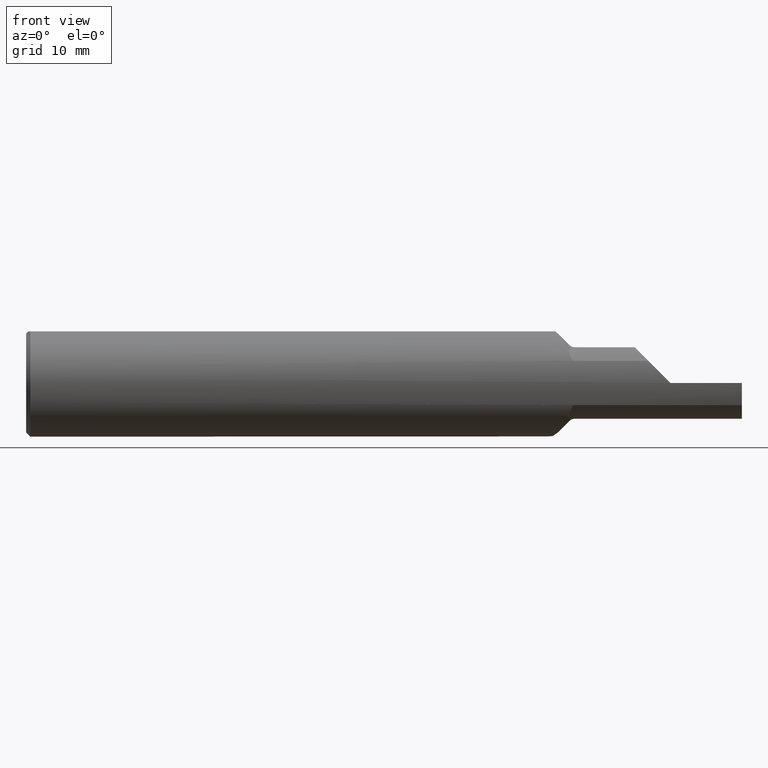
[diagram: clean part render]
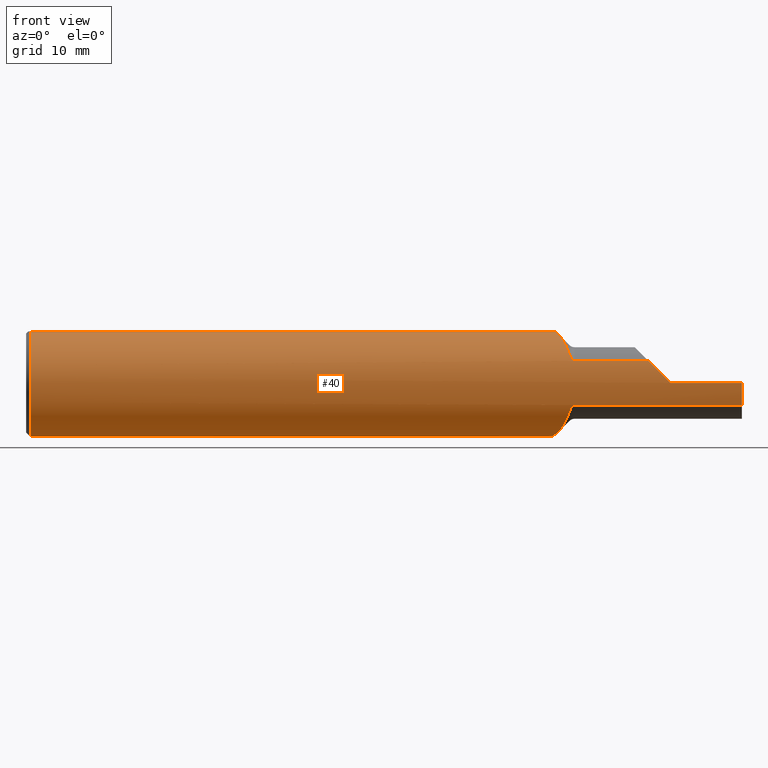
[diagram: same view with one face highlighted and labeled with its STEP entity id]
A machine part, front view. The second image highlights one B-rep face of the part: STEP entity #40.
In plain terms, the highlighted cylindrical surface (partial cylindrical patch) has radius 4.7587 mm, axis along (-1, -0, -0).
Its self-contained STEP definition (entity closure, byte-faithful):
#7 = EDGE_CURVE ( 'NONE', #105, #1034, #564, .T. ) ;
#12 = CARTESIAN_POINT ( 'NONE',  ( 1.777954695071388480, 0.1602583907463169255, 0.09790328053815619547 ) ) ;
#13 = CARTESIAN_POINT ( 'NONE',  ( 1.875102823204432001, -0.1130155210225757267, 0.1497212379034122409 ) ) ;
#30 = CARTESIAN_POINT ( 'NONE',  ( 1.857183623461200250, -0.07234999999999974785, 0.1728163765387992490 ) ) ;
#38 = CARTESIAN_POINT ( 'NONE',  ( 1.901158120796535789, -0.1633562859224052255, -0.09187193175627542119 ) ) ;
#40 = ADVANCED_FACE ( 'NONE', ( #180 ), #510, .T. ) ;
#42 = CARTESIAN_POINT ( 'NONE',  ( 1.771224228460478001, 0.1840318009960000556, 0.03744608662781920977 ) ) ;
#45 = DIRECTION ( 'NONE',  ( 0.000000000000000000, 0.000000000000000000, -1.000000000000000000 ) ) ;
#52 = CARTESIAN_POINT ( 'NONE',  ( 1.915355339059327644, -0.1707639599170700795, -0.07706940050007714260 ) ) ;
#56 = ORIENTED_EDGE ( 'NONE', *, *, #1011, .F. ) ;
#57 = CARTESIAN_POINT ( 'NONE',  ( 1.899285680703583612, -0.1606834653131303248, -0.09649123740443005248 ) ) ;
#63 = CARTESIAN_POINT ( 'NONE',  ( 2.250000000000000000, -0.1873499999999999610, -6.429183357567478880E-17 ) ) ;
#64 = ORIENTED_EDGE ( 'NONE', *, *, #302, .T. ) ;
#93 = CARTESIAN_POINT ( 'NONE',  ( 2.500000000000000000, -0.05073361804563106953, 0.1803500000000000381 ) ) ;
#96 = VERTEX_POINT ( 'NONE', #192 ) ;
#97 = CARTESIAN_POINT ( 'NONE',  ( 1.770337763137152187, 0.1872124516334592037, -0.01487472210176730286 ) ) ;
#105 = VERTEX_POINT ( 'NONE', #426 ) ;
#107 = CARTESIAN_POINT ( 'NONE',  ( 1.860785728155223806, -0.08095404535085916342, 0.1692142718447749994 ) ) ;
#108 = CARTESIAN_POINT ( 'NONE',  ( 2.500000000000000000, 0.000000000000000000, 0.000000000000000000 ) ) ;
#114 = DIRECTION ( 'NONE',  ( 0.000000000000000000, 0.000000000000000000, 1.000000000000000000 ) ) ;
#115 = ORIENTED_EDGE ( 'NONE', *, *, #486, .T. ) ;
#123 = CARTESIAN_POINT ( 'NONE',  ( 1.779995236286230131, 0.1531585939589148182, 0.1086796373768308538 ) ) ;
#127 = CARTESIAN_POINT ( 'NONE',  ( 1.772432072879413179, 0.1797268795620591830, -0.05330411249906009952 ) ) ;
#130 =( BOUNDED_CURVE ( )  B_SPLINE_CURVE ( 3, ( #382, #818, #885, #154 ),
 .UNSPECIFIED., .F., .F. ) 
 B_SPLINE_CURVE_WITH_KNOTS ( ( 4, 4 ),
 ( 4.715858429565467524, 5.136341099405665744 ),
 .UNSPECIFIED. ) 
 CURVE ( )  GEOMETRIC_REPRESENTATION_ITEM ( )  RATIONAL_B_SPLINE_CURVE ( ( 1.000000000000000000, 0.9853203850599061564, 0.9853203850599061564, 1.000000000000000000 ) ) 
 REPRESENTATION_ITEM ( '' )  );
#136 = DIRECTION ( 'NONE',  ( -1.000000000000000000, -0.000000000000000000, -0.000000000000000000 ) ) ;
#144 = CARTESIAN_POINT ( 'NONE',  ( 0.01499999999999942525, -0.05073361804563293609, 0.1803500000000000381 ) ) ;
#149 = EDGE_CURVE ( 'NONE', #814, #972, #626, .T. ) ;
#151 = CARTESIAN_POINT ( 'NONE',  ( 1.871587353908034101, -0.1054096907537717676, -0.1551669346804203653 ) ) ;
#154 = CARTESIAN_POINT ( 'NONE',  ( 2.173580599499921995, -0.1707639599170699407, 0.07706940050007732301 ) ) ;
#161 = ORIENTED_EDGE ( 'NONE', *, *, #942, .T. ) ;
#164 = VERTEX_POINT ( 'NONE', #451 ) ;
#172 = CARTESIAN_POINT ( 'NONE',  ( 1.776563200756604122, 0.1651118022961632903, -0.08947527289251178129 ) ) ;
#177 = CARTESIAN_POINT ( 'NONE',  ( 1.784238480591338272, 0.1386485486275685630, -0.1261636421672477359 ) ) ;
#180 = FACE_OUTER_BOUND ( 'NONE', #829, .T. ) ;
#183 = CARTESIAN_POINT ( 'NONE',  ( 1.812478857280754863, 0.04812493428509528881, -0.1814925034083489097 ) ) ;
#184 = CARTESIAN_POINT ( 'NONE',  ( 1.871519615916160229, -0.1052610557576409561, 0.1552667971135522629 ) ) ;
#190 = EDGE_CURVE ( 'NONE', #457, #223, #663, .T. ) ;
#192 = CARTESIAN_POINT ( 'NONE',  ( 2.250000000000000000, -0.1873488724278853934, 0.0006500000000000633960 ) ) ;
#194 = CARTESIAN_POINT ( 'NONE',  ( 0.01500000000000079568, 0.000000000000000000, 0.000000000000000000 ) ) ;
#204 = CARTESIAN_POINT ( 'NONE',  ( 1.847805746031308427, -0.04949128757996133082, -0.1811094437879526287 ) ) ;
#213 = CARTESIAN_POINT ( 'NONE',  ( 1.897677669529663991, -0.1577425422176862713, 0.1010807245457879533 ) ) ;
#217 = AXIS2_PLACEMENT_3D ( 'NONE', #108, #347, #114 ) ;
#221 = CARTESIAN_POINT ( 'NONE',  ( 1.885357923537703373, -0.1342337378524104674, -0.1310429395623435855 ) ) ;
#223 = VERTEX_POINT ( 'NONE', #608 ) ;
#225 = EDGE_CURVE ( 'NONE', #814, #515, #721, .T. ) ;
#226 = CARTESIAN_POINT ( 'NONE',  ( 0.01500000000000079568, 0.000000000000000000, 0.000000000000000000 ) ) ;
#230 = LINE ( 'NONE', #234, #667 ) ;
#234 = CARTESIAN_POINT ( 'NONE',  ( 2.500000000000000000, -0.1873499999999999888, -6.429183357567480113E-17 ) ) ;
#246 = CARTESIAN_POINT ( 'NONE',  ( 1.793480051322620783, 0.1077969305866319782, 0.1537576155098321073 ) ) ;
#250 = VERTEX_POINT ( 'NONE', #372 ) ;
#252 = CARTESIAN_POINT ( 'NONE',  ( 1.801107762570094861, 0.08323016174429369307, -0.1683102574403323726 ) ) ;
#257 = ORIENTED_EDGE ( 'NONE', *, *, #754, .T. ) ;
#261 = LINE ( 'NONE', #350, #956 ) ;
#280 = CARTESIAN_POINT ( 'NONE',  ( 1.774547880979551184, 0.1722069005976021305, 0.07491720450804137399 ) ) ;
#282 = CARTESIAN_POINT ( 'NONE',  ( 1.912529687311022020, -0.1705378972963421114, -0.07757250268437203278 ) ) ;
#283 = CARTESIAN_POINT ( 'NONE',  ( 1.909127509227307895, -0.1694309564744252428, 0.07996482047444376795 ) ) ;
#284 = CARTESIAN_POINT ( 'NONE',  ( 1.857183623461200250, -0.07234999999999970621, -0.1728163765387992212 ) ) ;
#293 = CARTESIAN_POINT ( 'NONE',  ( 1.906393178060183047, -0.1680115360107063693, 0.08292733185577289001 ) ) ;
#300 = CARTESIAN_POINT ( 'NONE',  ( 2.173580599499921995, -0.1707639599170699407, 0.07706940050007732301 ) ) ;
#301 = EDGE_CURVE ( 'NONE', #223, #164, #965, .T. ) ;
#302 = EDGE_CURVE ( 'NONE', #1034, #983, #516, .T. ) ;
#304 = CARTESIAN_POINT ( 'NONE',  ( 1.915355339059327644, -0.1707639599170700795, 0.07706940050007714260 ) ) ;
#320 = CARTESIAN_POINT ( 'NONE',  ( 1.897677669529663991, -0.1577425422176863545, -0.1010807245457878562 ) ) ;
#323 = ORIENTED_EDGE ( 'NONE', *, *, #225, .T. ) ;
#325 = B_SPLINE_CURVE_WITH_KNOTS ( 'NONE', 3,
 ( #1042, #892, #391, #982 ),
 .UNSPECIFIED., .F., .F.,
 ( 4, 4 ),
 ( 7.799852739749770526E-07, 0.0006200624351649179893 ),
 .UNSPECIFIED. ) ;
#329 = CARTESIAN_POINT ( 'NONE',  ( 1.808512342576672705, 0.06018334788945476493, -0.1778582784703288122 ) ) ;
#330 = CARTESIAN_POINT ( 'NONE',  ( 2.500000000000000000, -0.1873499999999998222, -6.429183357567480113E-17 ) ) ;
#335 = AXIS2_PLACEMENT_3D ( 'NONE', #226, #728, #881 ) ;
#336 = EDGE_CURVE ( 'NONE', #105, #467, #325, .T. ) ;
#342 = CARTESIAN_POINT ( 'NONE',  ( 1.796798760652082771, 0.09699900128417589251, 0.1607818136651500696 ) ) ;
#346 = CARTESIAN_POINT ( 'NONE',  ( 1.897677669529663991, -0.1577425422176862713, 0.1010807245457879533 ) ) ;
#347 = DIRECTION ( 'NONE',  ( -1.000000000000000000, -0.000000000000000000, -0.000000000000000000 ) ) ;
#350 = CARTESIAN_POINT ( 'NONE',  ( 2.500000000000000000, 0.05073361804563106953, 0.1803500000000000381 ) ) ;
#357 = CARTESIAN_POINT ( 'NONE',  ( 1.906405057452078999, -0.1680204051680166677, -0.08290941801067872041 ) ) ;
#359 = CARTESIAN_POINT ( 'NONE',  ( 1.894854473388828175, -0.1525791435621195735, -0.1091385182950158350 ) ) ;
#369 = DIRECTION ( 'NONE',  ( 1.000000000000000000, 0.000000000000000000, 0.000000000000000000 ) ) ;
#372 = CARTESIAN_POINT ( 'NONE',  ( 1.857183623461200250, -0.07234999999999970621, -0.1728163765387992212 ) ) ;
#382 = CARTESIAN_POINT ( 'NONE',  ( 2.250000000000000000, -0.1873488724278853934, 0.0006500000000000633960 ) ) ;
#391 = CARTESIAN_POINT ( 'NONE',  ( 1.854251527663556942, -0.06534634870195803191, 0.1757484723364423351 ) ) ;
#407 = CARTESIAN_POINT ( 'NONE',  ( 1.857183623461200250, -0.07234999999999974785, 0.1728163765387992490 ) ) ;
#426 = CARTESIAN_POINT ( 'NONE',  ( 1.848359171801058576, -0.05073361804563107647, 0.1803500000000000381 ) ) ;
#429 = CARTESIAN_POINT ( 'NONE',  ( 1.904964460073831356, -0.1669035892968261936, -0.08514482223591543497 ) ) ;
#431 = CARTESIAN_POINT ( 'NONE',  ( 1.780656052074582885, 0.1509087159451679150, -0.1112131773084087949 ) ) ;
#437 = CARTESIAN_POINT ( 'NONE',  ( 1.779558854539173396, 0.1547009345895635213, -0.1058752598168465897 ) ) ;
#438 = EDGE_CURVE ( 'NONE', #467, #515, #773, .T. ) ;
#445 = CARTESIAN_POINT ( 'NONE',  ( 1.915355339059327644, -0.1707639599170700795, 0.07706940050007714260 ) ) ;
#451 = CARTESIAN_POINT ( 'NONE',  ( 1.915355339059327644, -0.1707639599170700795, -0.07706940050007714260 ) ) ;
#452 = CARTESIAN_POINT ( 'NONE',  ( 1.891809946652520669, -0.1468449295534861310, -0.1167369480987120733 ) ) ;
#457 = VERTEX_POINT ( 'NONE', #330 ) ;
#467 = VERTEX_POINT ( 'NONE', #407 ) ;
#473 = DIRECTION ( 'NONE',  ( -1.000000000000000000, -0.000000000000000000, -0.000000000000000000 ) ) ;
#481 = B_SPLINE_CURVE_WITH_KNOTS ( 'NONE', 3,
 ( #1014, #57, #38, #429, #357, #867, #783, #282, #766, #52 ),
 .UNSPECIFIED., .F., .F.,
 ( 4, 2, 2, 2, 4 ),
 ( 4.336808689942017736E-19, 0.0004304743692919203116, 0.0006457115539378756970, 0.0007533301462608603827, 0.0008609487385838451769 ),
 .UNSPECIFIED. ) ;
#486 = EDGE_CURVE ( 'NONE', #983, #884, #844, .T. ) ;
#492 = CARTESIAN_POINT ( 'NONE',  ( 1.852477893930588593, -0.06110981857011840712, -0.1775221060694107122 ) ) ;
#497 = CARTESIAN_POINT ( 'NONE',  ( 1.770621239219315690, 0.1861972792961229528, 0.02458794189566211943 ) ) ;
#503 = CARTESIAN_POINT ( 'NONE',  ( 1.820779348551172294, 0.02364555254899058240, -0.1862697665699595551 ) ) ;
#504 = CARTESIAN_POINT ( 'NONE',  ( 1.891941235793674903, -0.1472510663291620447, 0.1174533028559257286 ) ) ;
#506 = AXIS2_PLACEMENT_3D ( 'NONE', #194, #593, #825 ) ;
#510 = CYLINDRICAL_SURFACE ( 'NONE', #217, 0.1873499999999999888 ) ;
#515 = VERTEX_POINT ( 'NONE', #739 ) ;
#516 = CIRCLE ( 'NONE', #335, 0.1873499999999999888 ) ;
#519 = CARTESIAN_POINT ( 'NONE',  ( 1.904950128550692456, -0.1668915319110460538, 0.08516824821476272345 ) ) ;
#521 = CARTESIAN_POINT ( 'NONE',  ( 1.771146235663013435, 0.1843168879482640354, -0.03420148451633128056 ) ) ;
#528 = CARTESIAN_POINT ( 'NONE',  ( 2.153999999999999915, -0.1707639599170700795, 0.07706940050007714260 ) ) ;
#529 = DIRECTION ( 'NONE',  ( 0.000000000000000000, 0.000000000000000000, 1.000000000000000000 ) ) ;
#536 = EDGE_CURVE ( 'NONE', #884, #898, #261, .T. ) ;
#549 = ORIENTED_EDGE ( 'NONE', *, *, #7, .T. ) ;
#556 = EDGE_CURVE ( 'NONE', #801, #164, #481, .T. ) ;
#564 = LINE ( 'NONE', #93, #870 ) ;
#567 = B_SPLINE_CURVE_WITH_KNOTS ( 'NONE', 3,
 ( #963, #359, #452, #221, #791, #627, #151, #1038, #1032, #284 ),
 .UNSPECIFIED., .F., .F.,
 ( 4, 2, 2, 2, 4 ),
 ( 0.0007161442845211431294, 0.001476352927346877243, 0.002236561570172611139, 0.002996770212998345687, 0.003756978855824079366 ),
 .UNSPECIFIED. ) ;
#573 = ORIENTED_EDGE ( 'NONE', *, *, #908, .F. ) ;
#575 = CARTESIAN_POINT ( 'NONE',  ( 1.811652342510382541, 0.05073361804563572552, 0.1803500000000000381 ) ) ;
#588 = CARTESIAN_POINT ( 'NONE',  ( 1.825054110130809093, 0.01139412105151815964, -0.1874041826882221762 ) ) ;
#592 = CARTESIAN_POINT ( 'NONE',  ( 1.772992082306585893, 0.1777339935978582974, -0.05960787101436530039 ) ) ;
#593 = DIRECTION ( 'NONE',  ( 1.000000000000000000, -0.000000000000000000, -0.000000000000000000 ) ) ;
#608 = CARTESIAN_POINT ( 'NONE',  ( 2.500000000000000000, -0.1707639599170699962, -0.07706940050007722587 ) ) ;
#609 = CARTESIAN_POINT ( 'NONE',  ( 1.784807027521196243, 0.1366915025519611637, 0.1287798571746311960 ) ) ;
#610 = VECTOR ( 'NONE', #369, 39.37007874015748143 ) ;
#612 = CARTESIAN_POINT ( 'NONE',  ( 1.899285629790762764, -0.1606833721979553653, 0.09649138271627615004 ) ) ;
#616 = CARTESIAN_POINT ( 'NONE',  ( 2.500000000000000000, 0.000000000000000000, 0.000000000000000000 ) ) ;
#626 = LINE ( 'NONE', #528, #610 ) ;
#627 = CARTESIAN_POINT ( 'NONE',  ( 1.875101511466827686, -0.1130118820033058080, -0.1497209324072606984 ) ) ;
#649 = CARTESIAN_POINT ( 'NONE',  ( 2.153999999999999915, -0.1707639599170700795, -0.07706940050007714260 ) ) ;
#660 = CARTESIAN_POINT ( 'NONE',  ( 1.807636035106981343, 0.06285457607314892670, 0.1769402963409190677 ) ) ;
#663 = CIRCLE ( 'NONE', #799, 0.1873499999999999888 ) ;
#664 = ORIENTED_EDGE ( 'NONE', *, *, #536, .T. ) ;
#665 = CARTESIAN_POINT ( 'NONE',  ( 1.774926753194635998, 0.1708787332540029902, -0.07791196371509558072 ) ) ;
#667 = VECTOR ( 'NONE', #733, 39.37007874015748143 ) ;
#672 = B_SPLINE_CURVE_WITH_KNOTS ( 'NONE', 3,
 ( #744, #492, #204, #751, #933, #588, #503, #183, #329, #252, #919, #823, #686, #177, #994, #431, #437, #172, #665, #592, #127, #842, #521, #97, #775, #497, #42, #738, #280, #12, #123, #609, #981, #246, #342, #831, #660, #858 ),
 .UNSPECIFIED., .F., .F.,
 ( 4, 2, 2, 2, 2, 2, 2, 2, 2, 2, 2, 2, 2, 2, 2, 2, 2, 2, 4 ),
 ( 0.003756978855824079366, 0.004750606070745804280, 0.005744233285667529193, 0.006737860500589254974, 0.007731487715510979887, 0.008725114930432705668, 0.009718742145354430581, 0.01021555575281529044, 0.01071236936027615202, 0.01170599657519787347, 0.01220281018265873679, 0.01269962379011959665, 0.01369325100504131809, 0.01468687821996304127, 0.01568050543488476445, 0.01667413264980648069, 0.01766775986472820387, 0.01866138707964992705, 0.01965501429457164675 ),
 .UNSPECIFIED. ) ;
#686 = CARTESIAN_POINT ( 'NONE',  ( 1.788189419821468062, 0.1252997508203159416, -0.1398665203331845297 ) ) ;
#695 = CARTESIAN_POINT ( 'NONE',  ( 2.250000000000000000, 0.000000000000000000, 0.000000000000000000 ) ) ;
#704 = CARTESIAN_POINT ( 'NONE',  ( 1.912523631617916831, -0.1705361967948134383, 0.07757619954458885858 ) ) ;
#721 = B_SPLINE_CURVE_WITH_KNOTS ( 'NONE', 3,
 ( #445, #784, #704, #1015, #283, #293, #519, #789, #612, #213 ),
 .UNSPECIFIED., .F., .F.,
 ( 4, 2, 2, 2, 4 ),
 ( 0.000000000000000000, 0.0001085685215048198186, 0.0002171370430096396372, 0.0004342740860192935318, 0.0008685481720386001823 ),
 .UNSPECIFIED. ) ;
#728 = DIRECTION ( 'NONE',  ( 1.000000000000000000, -0.000000000000000000, -0.000000000000000000 ) ) ;
#733 = DIRECTION ( 'NONE',  ( -1.000000000000000000, -0.000000000000000000, -0.000000000000000000 ) ) ;
#738 = CARTESIAN_POINT ( 'NONE',  ( 1.773177002644260813, 0.1770736257016730097, 0.06256871632400115568 ) ) ;
#739 = CARTESIAN_POINT ( 'NONE',  ( 1.897677669529663991, -0.1577425422176862713, 0.1010807245457879533 ) ) ;
#744 = CARTESIAN_POINT ( 'NONE',  ( 1.857183623461200250, -0.07234999999999970621, -0.1728163765387992212 ) ) ;
#751 = CARTESIAN_POINT ( 'NONE',  ( 1.838512632015396830, -0.02549221419735799368, -0.1860111964125279460 ) ) ;
#754 = EDGE_CURVE ( 'NONE', #457, #1043, #230, .T. ) ;
#759 = ORIENTED_EDGE ( 'NONE', *, *, #190, .F. ) ;
#761 = EDGE_CURVE ( 'NONE', #96, #972, #130, .T. ) ;
#766 = CARTESIAN_POINT ( 'NONE',  ( 1.913908902861729322, -0.1707639599170534539, -0.07706940050015212429 ) ) ;
#773 = B_SPLINE_CURVE_WITH_KNOTS ( 'NONE', 3,
 ( #30, #107, #832, #184, #13, #927, #504, #346 ),
 .UNSPECIFIED., .F., .F.,
 ( 4, 2, 2, 4 ),
 ( 0.0006200624351649179893, 0.001380856206457162314, 0.002141649977749406856, 0.003663237520333904179 ),
 .UNSPECIFIED. ) ;
#775 = CARTESIAN_POINT ( 'NONE',  ( 1.770172998329585301, 0.1878056362616669361, -0.001742610769309169009 ) ) ;
#783 = CARTESIAN_POINT ( 'NONE',  ( 1.910148460470593834, -0.1698665315290002753, -0.07903182304161913974 ) ) ;
#784 = CARTESIAN_POINT ( 'NONE',  ( 1.913899932622417976, -0.1707639599170700795, 0.07706940050007711485 ) ) ;
#789 = CARTESIAN_POINT ( 'NONE',  ( 1.901157602756840204, -0.1633531904446171856, 0.09187667485228832864 ) ) ;
#791 = CARTESIAN_POINT ( 'NONE',  ( 1.881976415317672124, -0.1274041427334712540, -0.1376816163806117155 ) ) ;
#799 = AXIS2_PLACEMENT_3D ( 'NONE', #616, #945, #45 ) ;
#800 = DIRECTION ( 'NONE',  ( -1.000000000000000000, -0.000000000000000000, -0.000000000000000000 ) ) ;
#801 = VERTEX_POINT ( 'NONE', #320 ) ;
#814 = VERTEX_POINT ( 'NONE', #304 ) ;
#818 = CARTESIAN_POINT ( 'NONE',  ( 2.223545696637380331, -0.1872570901984921543, 0.02710430336261951054 ) ) ;
#822 = ORIENTED_EDGE ( 'NONE', *, *, #301, .F. ) ;
#823 = CARTESIAN_POINT ( 'NONE',  ( 1.791116425318793448, 0.1155509289413751833, -0.1480264012985756661 ) ) ;
#825 = DIRECTION ( 'NONE',  ( 0.000000000000000000, 0.000000000000000000, -1.000000000000000000 ) ) ;
#827 = CIRCLE ( 'NONE', #859, 0.1873499999999999888 ) ;
#829 = EDGE_LOOP ( 'NONE', ( #822, #759, #257, #161, #947, #905, #323, #846, #874, #549, #64, #115, #664, #573, #56, #882 ) ) ;
#831 = CARTESIAN_POINT ( 'NONE',  ( 1.803874789929541755, 0.07453730533396583924, 0.1723478690588709505 ) ) ;
#832 = CARTESIAN_POINT ( 'NONE',  ( 1.864374853501117979, -0.08925789740646671022, 0.1649869567441343277 ) ) ;
#842 = CARTESIAN_POINT ( 'NONE',  ( 1.771509882952550630, 0.1830157774888624689, -0.04059932064178667366 ) ) ;
#844 = CIRCLE ( 'NONE', #506, 0.1873499999999999888 ) ;
#846 = ORIENTED_EDGE ( 'NONE', *, *, #438, .F. ) ;
#858 = CARTESIAN_POINT ( 'NONE',  ( 1.811652342510382541, 0.05073361804563572552, 0.1803500000000000381 ) ) ;
#859 = AXIS2_PLACEMENT_3D ( 'NONE', #695, #136, #529 ) ;
#867 = CARTESIAN_POINT ( 'NONE',  ( 1.909149281104587148, -0.1694408866950492809, -0.07994379167839711642 ) ) ;
#870 = VECTOR ( 'NONE', #473, 39.37007874015748143 ) ;
#874 = ORIENTED_EDGE ( 'NONE', *, *, #336, .F. ) ;
#881 = DIRECTION ( 'NONE',  ( 0.000000000000000000, 0.000000000000000000, -1.000000000000000000 ) ) ;
#882 = ORIENTED_EDGE ( 'NONE', *, *, #556, .T. ) ;
#884 = VERTEX_POINT ( 'NONE', #906 ) ;
#885 = CARTESIAN_POINT ( 'NONE',  ( 2.197693056332493899, -0.1816464236030419233, 0.05295694366750571674 ) ) ;
#892 = CARTESIAN_POINT ( 'NONE',  ( 1.851310630883624908, -0.05814350708713280497, 0.1782655504275461600 ) ) ;
#898 = VERTEX_POINT ( 'NONE', #575 ) ;
#905 = ORIENTED_EDGE ( 'NONE', *, *, #149, .F. ) ;
#906 = CARTESIAN_POINT ( 'NONE',  ( 0.01500000000000079568, 0.05073361804563106953, 0.1803500000000000381 ) ) ;
#908 = EDGE_CURVE ( 'NONE', #250, #898, #672, .T. ) ;
#915 = DIRECTION ( 'NONE',  ( 1.000000000000000000, 0.000000000000000000, 0.000000000000000000 ) ) ;
#919 = CARTESIAN_POINT ( 'NONE',  ( 1.797627288442569915, 0.09434647022735524746, -0.1623655635172079614 ) ) ;
#927 = CARTESIAN_POINT ( 'NONE',  ( 1.885467495936204552, -0.1347107488173139023, 0.1315628174615313117 ) ) ;
#933 = CARTESIAN_POINT ( 'NONE',  ( 1.833895706846281337, -0.01311122781479166950, -0.1872918828694021265 ) ) ;
#942 = EDGE_CURVE ( 'NONE', #1043, #96, #827, .T. ) ;
#945 = DIRECTION ( 'NONE',  ( 1.000000000000000000, 0.000000000000000000, 0.000000000000000000 ) ) ;
#947 = ORIENTED_EDGE ( 'NONE', *, *, #761, .T. ) ;
#956 = VECTOR ( 'NONE', #915, 39.37007874015748143 ) ;
#963 = CARTESIAN_POINT ( 'NONE',  ( 1.897677669529663991, -0.1577425422176863545, -0.1010807245457878562 ) ) ;
#965 = LINE ( 'NONE', #649, #990 ) ;
#972 = VERTEX_POINT ( 'NONE', #300 ) ;
#981 = CARTESIAN_POINT ( 'NONE',  ( 1.787505014431014727, 0.1275766949525765082, 0.1377888583164319225 ) ) ;
#982 = CARTESIAN_POINT ( 'NONE',  ( 1.857183623461200250, -0.07234999999999974785, 0.1728163765387992490 ) ) ;
#983 = VERTEX_POINT ( 'NONE', #1023 ) ;
#990 = VECTOR ( 'NONE', #800, 39.37007874015748143 ) ;
#994 = CARTESIAN_POINT ( 'NONE',  ( 1.782995427860555537, 0.1428842120803212323, -0.1213503740968141231 ) ) ;
#1011 = EDGE_CURVE ( 'NONE', #801, #250, #567, .T. ) ;
#1014 = CARTESIAN_POINT ( 'NONE',  ( 1.897677669529663991, -0.1577425422176863545, -0.1010807245457878562 ) ) ;
#1015 = CARTESIAN_POINT ( 'NONE',  ( 1.910154356542653975, -0.1698681870263311355, 0.07902822400515253920 ) ) ;
#1023 = CARTESIAN_POINT ( 'NONE',  ( 0.01500000000000079568, 0.000000000000000000, -0.1873499999999999888 ) ) ;
#1032 = CARTESIAN_POINT ( 'NONE',  ( 1.860783903532286176, -0.08094968702708882358, -0.1692160964677134061 ) ) ;
#1034 = VERTEX_POINT ( 'NONE', #144 ) ;
#1038 = CARTESIAN_POINT ( 'NONE',  ( 1.864430903969886089, -0.08938647639046529147, -0.1649182778269906446 ) ) ;
#1042 = CARTESIAN_POINT ( 'NONE',  ( 1.848359171801058576, -0.05073361804563107647, 0.1803500000000000381 ) ) ;
#1043 = VERTEX_POINT ( 'NONE', #63 ) ;